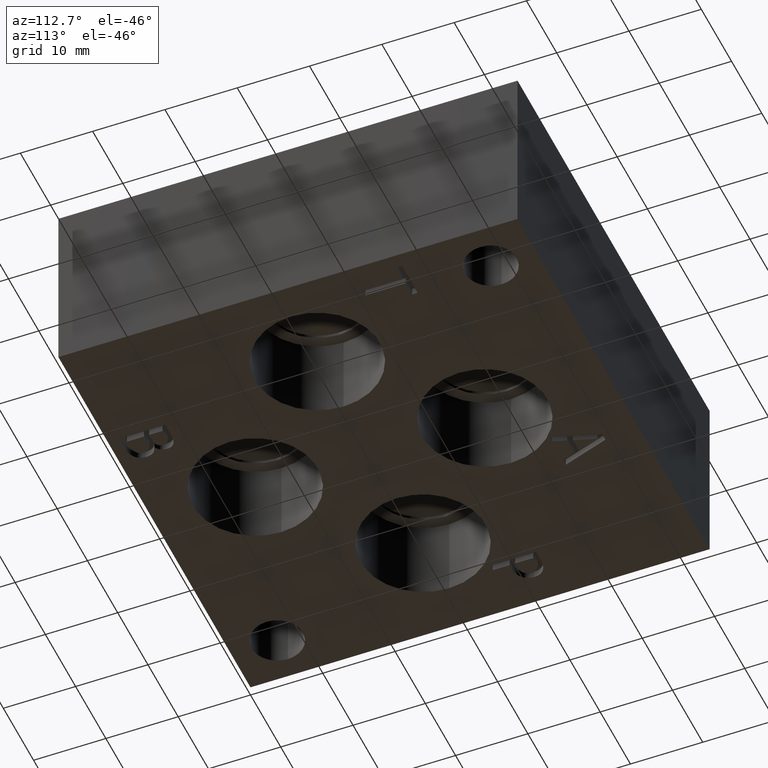
[diagram: clean part render]
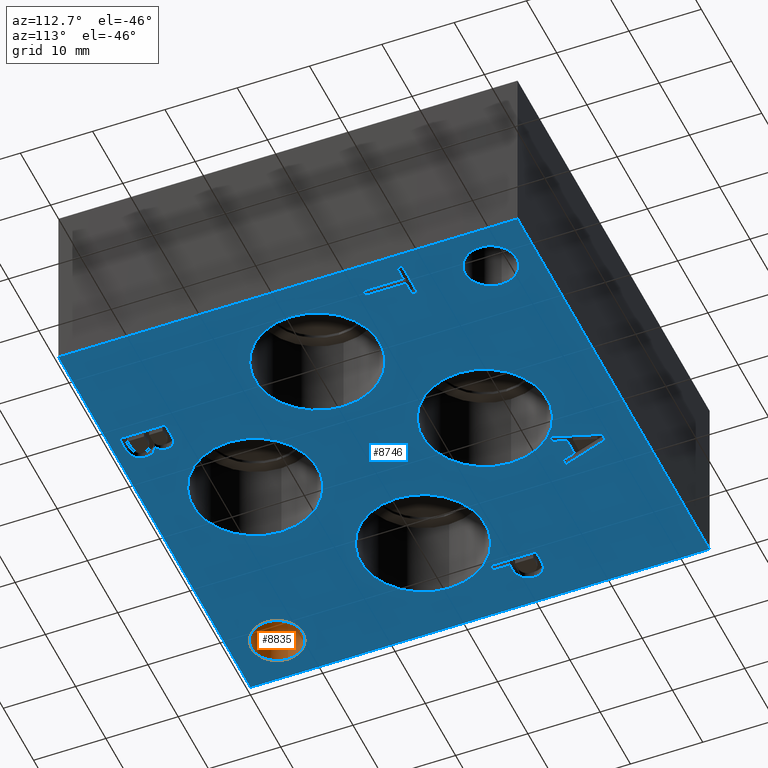
[diagram: same view with the hole feature highlighted: cylindrical wall and planar end face, labeled with their STEP entity ids]
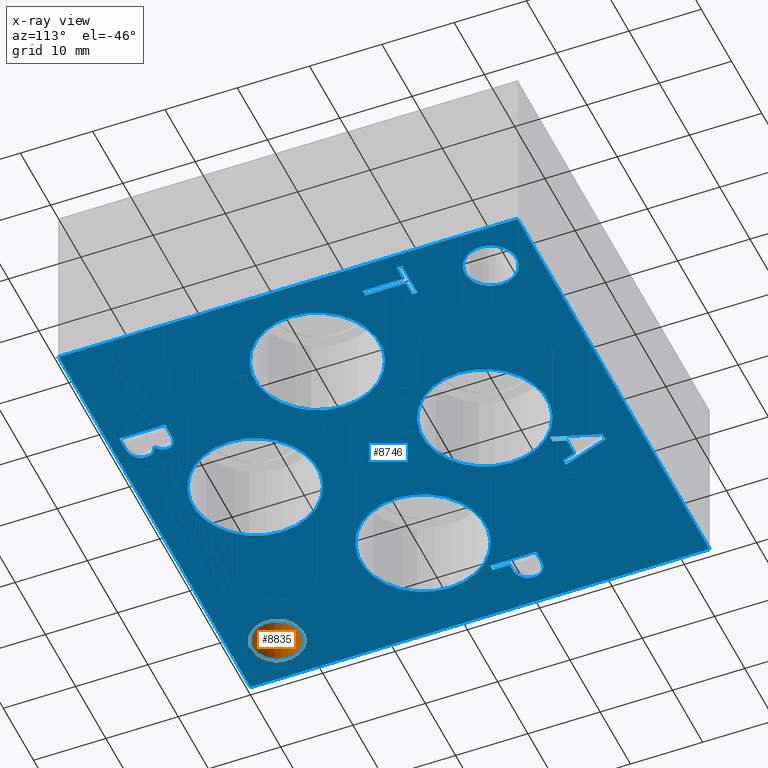
[diagram: x-ray of the same camera — body ghosted, the hole faces saturated]
A machine part, auxiliary view. The highlighted faces form one hole feature of diameter 7.1374 mm: the cylindrical wall (entity #8835, orange) and its adjacent planar end face (entity #8746, blue) — they share a circular edge in the B-rep.
The next image is the same camera in x-ray (body ghosted, the hole faces saturated) — the bore reads through the body.
Wall:
#38=CYLINDRICAL_SURFACE('',#9251,3.5687);
#61=CIRCLE('',#9092,3.5687);
#137=CIRCLE('',#9247,3.5687);
#920=FACE_OUTER_BOUND('',#1420,.T.);
#1420=EDGE_LOOP('',(#7827,#7828,#7829,#7830));
#2288=LINE('',#15134,#3144);
#3144=VECTOR('',#10902,3.5687);
#4088=VERTEX_POINT('',#14588);
#4238=VERTEX_POINT('',#15125);
#5237=EDGE_CURVE('',#4088,#4088,#61,.T.);
#5445=EDGE_CURVE('',#4238,#4238,#137,.T.);
#5449=EDGE_CURVE('',#4238,#4088,#2288,.T.);
#7827=ORIENTED_EDGE('',*,*,#5445,.T.);
#7828=ORIENTED_EDGE('',*,*,#5449,.T.);
#7829=ORIENTED_EDGE('',*,*,#5237,.F.);
#7830=ORIENTED_EDGE('',*,*,#5449,.F.);
#8835=ADVANCED_FACE('',(#920),#38,.F.);
#9092=AXIS2_PLACEMENT_3D('',#14589,#10461,#10462);
#9247=AXIS2_PLACEMENT_3D('',#15126,#10891,#10892);
#9251=AXIS2_PLACEMENT_3D('',#15133,#10900,#10901);
#10461=DIRECTION('center_axis',(0.,0.,1.));
#10462=DIRECTION('ref_axis',(1.,0.,0.));
#10891=DIRECTION('center_axis',(0.,0.,1.));
#10892=DIRECTION('ref_axis',(1.,0.,0.));
#10900=DIRECTION('center_axis',(0.,0.,1.));
#10901=DIRECTION('ref_axis',(1.,0.,0.));
#10902=DIRECTION('',(0.,0.,-1.));
#14588=CARTESIAN_POINT('',(2.7813,6.35,0.));
#14589=CARTESIAN_POINT('Origin',(6.35,6.35,0.));
#15125=CARTESIAN_POINT('',(2.7813,6.35,12.7));
#15126=CARTESIAN_POINT('Origin',(6.35,6.35,12.7));
#15133=CARTESIAN_POINT('Origin',(6.35,6.35,-67.9255592000391));
#15134=CARTESIAN_POINT('',(2.7813,6.35,-67.9255592000391));
End face:
#52=CIRCLE('',#9083,8.6487);
#53=CIRCLE('',#9084,8.6487);
#54=CIRCLE('',#9085,8.6487);
#55=CIRCLE('',#9086,8.6487);
#56=CIRCLE('',#9087,8.6487);
#57=CIRCLE('',#9088,8.6487);
#58=CIRCLE('',#9089,8.6487);
#59=CIRCLE('',#9090,8.6487);
#60=CIRCLE('',#9091,3.5687);
#61=CIRCLE('',#9092,3.5687);
#170=FACE_BOUND('',#1310,.T.);
#171=FACE_BOUND('',#1311,.T.);
#172=FACE_BOUND('',#1312,.T.);
#173=FACE_BOUND('',#1313,.T.);
#174=FACE_BOUND('',#1314,.T.);
#175=FACE_BOUND('',#1315,.T.);
#176=FACE_BOUND('',#1316,.T.);
#177=FACE_BOUND('',#1317,.T.);
#178=FACE_BOUND('',#1318,.T.);
#179=FACE_BOUND('',#1319,.T.);
#429=PLANE('',#9082);
#831=FACE_OUTER_BOUND('',#1309,.T.);
#1309=EDGE_LOOP('',(#7370,#7371,#7372,#7373));
#1310=EDGE_LOOP('',(#7374,#7375,#7376,#7377,#7378,#7379,#7380,#7381,#7382,
#7383));
#1311=EDGE_LOOP('',(#7384,#7385,#7386,#7387,#7388,#7389,#7390,#7391,#7392));
#1312=EDGE_LOOP('',(#7393,#7394));
#1313=EDGE_LOOP('',(#7395,#7396));
#1314=EDGE_LOOP('',(#7397,#7398));
#1315=EDGE_LOOP('',(#7399,#7400));
#1316=EDGE_LOOP('',(#7401));
#1317=EDGE_LOOP('',(#7402));
#1318=EDGE_LOOP('',(#7403,#7404,#7405,#7406,#7407,#7408,#7409,#7410));
#1319=EDGE_LOOP('',(#7411,#7412,#7413,#7414,#7415,#7416,#7417,#7418));
#1734=LINE('',#13293,#2590);
#2143=LINE('',#14419,#2999);
#2149=LINE('',#14482,#3005);
#2152=LINE('',#14488,#3008);
#2155=LINE('',#14494,#3011);
#2159=LINE('',#14536,#3015);
#2160=LINE('',#14538,#3016);
#2161=LINE('',#14539,#3017);
#2162=LINE('',#14557,#3018);
#2163=LINE('',#14559,#3019);
#2164=LINE('',#14561,#3020);
#2165=LINE('',#14563,#3021);
#2166=LINE('',#14565,#3022);
#2167=LINE('',#14592,#3023);
#2168=LINE('',#14594,#3024);
#2169=LINE('',#14596,#3025);
#2170=LINE('',#14598,#3026);
#2171=LINE('',#14600,#3027);
#2172=LINE('',#14602,#3028);
#2173=LINE('',#14604,#3029);
#2174=LINE('',#14605,#3030);
#2175=LINE('',#14608,#3031);
#2176=LINE('',#14610,#3032);
#2177=LINE('',#14612,#3033);
#2178=LINE('',#14614,#3034);
#2179=LINE('',#14616,#3035);
#2180=LINE('',#14618,#3036);
#2181=LINE('',#14620,#3037);
#2182=LINE('',#14621,#3038);
#2590=VECTOR('',#9704,10.);
#2999=VECTOR('',#10409,10.);
#3005=VECTOR('',#10417,10.);
#3008=VECTOR('',#10422,10.);
#3011=VECTOR('',#10427,10.);
#3015=VECTOR('',#10435,10.);
#3016=VECTOR('',#10436,10.);
#3017=VECTOR('',#10437,10.);
#3018=VECTOR('',#10438,10.);
#3019=VECTOR('',#10439,10.);
#3020=VECTOR('',#10440,10.);
#3021=VECTOR('',#10441,10.);
#3022=VECTOR('',#10442,10.);
#3023=VECTOR('',#10463,10.);
#3024=VECTOR('',#10464,10.);
#3025=VECTOR('',#10465,10.);
#3026=VECTOR('',#10466,10.);
#3027=VECTOR('',#10467,10.);
#3028=VECTOR('',#10468,10.);
#3029=VECTOR('',#10469,10.);
#3030=VECTOR('',#10470,10.);
#3031=VECTOR('',#10471,10.);
#3032=VECTOR('',#10472,10.);
#3033=VECTOR('',#10473,10.);
#3034=VECTOR('',#10474,10.);
#3035=VECTOR('',#10475,10.);
#3036=VECTOR('',#10476,10.);
#3037=VECTOR('',#10477,10.);
#3038=VECTOR('',#10478,10.);
#3390=B_SPLINE_CURVE_WITH_KNOTS('',2,(#14405,#14406,#14407,#14408),
 .UNSPECIFIED.,.F.,.F.,(3,1,3),(0.,1.,2.),.UNSPECIFIED.);
#3392=B_SPLINE_CURVE_WITH_KNOTS('',2,(#14432,#14433,#14434,#14435),
 .UNSPECIFIED.,.F.,.F.,(3,1,3),(0.,1.,2.),.UNSPECIFIED.);
#3394=B_SPLINE_CURVE_WITH_KNOTS('',2,(#14451,#14452,#14453,#14454),
 .UNSPECIFIED.,.F.,.F.,(3,1,3),(0.,1.,2.),.UNSPECIFIED.);
#3396=B_SPLINE_CURVE_WITH_KNOTS('',2,(#14470,#14471,#14472,#14473),
 .UNSPECIFIED.,.F.,.F.,(3,1,3),(0.,1.,2.),.UNSPECIFIED.);
#3398=B_SPLINE_CURVE_WITH_KNOTS('',2,(#14507,#14508,#14509,#14510),
 .UNSPECIFIED.,.F.,.F.,(3,1,3),(0.,1.,2.),.UNSPECIFIED.);
#3400=B_SPLINE_CURVE_WITH_KNOTS('',2,(#14525,#14526,#14527,#14528),
 .UNSPECIFIED.,.F.,.F.,(3,1,3),(0.,1.,2.),.UNSPECIFIED.);
#3402=B_SPLINE_CURVE_WITH_KNOTS('',2,(#14542,#14543,#14544,#14545),
 .UNSPECIFIED.,.F.,.F.,(3,1,3),(0.,1.,2.),.UNSPECIFIED.);
#3403=B_SPLINE_CURVE_WITH_KNOTS('',2,(#14547,#14548,#14549,#14550),
 .UNSPECIFIED.,.F.,.F.,(3,1,3),(0.,1.,2.),.UNSPECIFIED.);
#3404=B_SPLINE_CURVE_WITH_KNOTS('',2,(#14552,#14553,#14554,#14555),
 .UNSPECIFIED.,.F.,.F.,(3,1,3),(0.,1.,2.),.UNSPECIFIED.);
#3405=B_SPLINE_CURVE_WITH_KNOTS('',2,(#14566,#14567,#14568,#14569),
 .UNSPECIFIED.,.F.,.F.,(3,1,3),(0.,1.,2.),.UNSPECIFIED.);
#3754=VERTEX_POINT('',#13291);
#3755=VERTEX_POINT('',#13292);
#4048=VERTEX_POINT('',#14403);
#4049=VERTEX_POINT('',#14404);
#4052=VERTEX_POINT('',#14418);
#4054=VERTEX_POINT('',#14431);
#4056=VERTEX_POINT('',#14450);
#4058=VERTEX_POINT('',#14469);
#4060=VERTEX_POINT('',#14481);
#4062=VERTEX_POINT('',#14487);
#4064=VERTEX_POINT('',#14493);
#4066=VERTEX_POINT('',#14506);
#4068=VERTEX_POINT('',#14535);
#4069=VERTEX_POINT('',#14537);
#4070=VERTEX_POINT('',#14540);
#4071=VERTEX_POINT('',#14541);
#4072=VERTEX_POINT('',#14546);
#4073=VERTEX_POINT('',#14551);
#4074=VERTEX_POINT('',#14556);
#4075=VERTEX_POINT('',#14558);
#4076=VERTEX_POINT('',#14560);
#4077=VERTEX_POINT('',#14562);
#4078=VERTEX_POINT('',#14564);
#4079=VERTEX_POINT('',#14570);
#4080=VERTEX_POINT('',#14571);
#4081=VERTEX_POINT('',#14574);
#4082=VERTEX_POINT('',#14575);
#4083=VERTEX_POINT('',#14578);
#4084=VERTEX_POINT('',#14579);
#4085=VERTEX_POINT('',#14582);
#4086=VERTEX_POINT('',#14583);
#4087=VERTEX_POINT('',#14586);
#4088=VERTEX_POINT('',#14588);
#4089=VERTEX_POINT('',#14590);
#4090=VERTEX_POINT('',#14591);
#4091=VERTEX_POINT('',#14593);
#4092=VERTEX_POINT('',#14595);
#4093=VERTEX_POINT('',#14597);
#4094=VERTEX_POINT('',#14599);
#4095=VERTEX_POINT('',#14601);
#4096=VERTEX_POINT('',#14603);
#4097=VERTEX_POINT('',#14606);
#4098=VERTEX_POINT('',#14607);
#4099=VERTEX_POINT('',#14609);
#4100=VERTEX_POINT('',#14611);
#4101=VERTEX_POINT('',#14613);
#4102=VERTEX_POINT('',#14615);
#4103=VERTEX_POINT('',#14617);
#4104=VERTEX_POINT('',#14619);
#4747=EDGE_CURVE('',#3754,#3755,#1734,.T.);
#5186=EDGE_CURVE('',#4048,#4049,#3390,.T.);
#5190=EDGE_CURVE('',#4052,#4048,#2143,.T.);
#5193=EDGE_CURVE('',#4054,#4052,#3392,.T.);
#5196=EDGE_CURVE('',#4056,#4054,#3394,.T.);
#5199=EDGE_CURVE('',#4058,#4056,#3396,.T.);
#5202=EDGE_CURVE('',#4060,#4058,#2149,.T.);
#5205=EDGE_CURVE('',#4062,#4060,#2152,.T.);
#5208=EDGE_CURVE('',#4064,#4062,#2155,.T.);
#5211=EDGE_CURVE('',#4066,#4064,#3398,.T.);
#5214=EDGE_CURVE('',#4049,#4066,#3400,.T.);
#5216=EDGE_CURVE('',#4068,#3754,#2159,.T.);
#5217=EDGE_CURVE('',#4069,#4068,#2160,.T.);
#5218=EDGE_CURVE('',#3755,#4069,#2161,.T.);
#5219=EDGE_CURVE('',#4070,#4071,#3402,.T.);
#5220=EDGE_CURVE('',#4071,#4072,#3403,.T.);
#5221=EDGE_CURVE('',#4072,#4073,#3404,.T.);
#5222=EDGE_CURVE('',#4073,#4074,#2162,.T.);
#5223=EDGE_CURVE('',#4074,#4075,#2163,.T.);
#5224=EDGE_CURVE('',#4075,#4076,#2164,.T.);
#5225=EDGE_CURVE('',#4076,#4077,#2165,.T.);
#5226=EDGE_CURVE('',#4077,#4078,#2166,.T.);
#5227=EDGE_CURVE('',#4078,#4070,#3405,.T.);
#5228=EDGE_CURVE('',#4079,#4080,#52,.T.);
#5229=EDGE_CURVE('',#4080,#4079,#53,.T.);
#5230=EDGE_CURVE('',#4081,#4082,#54,.T.);
#5231=EDGE_CURVE('',#4082,#4081,#55,.T.);
#5232=EDGE_CURVE('',#4083,#4084,#56,.T.);
#5233=EDGE_CURVE('',#4084,#4083,#57,.T.);
#5234=EDGE_CURVE('',#4085,#4086,#58,.T.);
#5235=EDGE_CURVE('',#4086,#4085,#59,.T.);
#5236=EDGE_CURVE('',#4087,#4087,#60,.T.);
#5237=EDGE_CURVE('',#4088,#4088,#61,.T.);
#5238=EDGE_CURVE('',#4089,#4090,#2167,.T.);
#5239=EDGE_CURVE('',#4090,#4091,#2168,.T.);
#5240=EDGE_CURVE('',#4091,#4092,#2169,.T.);
#5241=EDGE_CURVE('',#4092,#4093,#2170,.T.);
#5242=EDGE_CURVE('',#4093,#4094,#2171,.T.);
#5243=EDGE_CURVE('',#4094,#4095,#2172,.T.);
#5244=EDGE_CURVE('',#4095,#4096,#2173,.T.);
#5245=EDGE_CURVE('',#4096,#4089,#2174,.T.);
#5246=EDGE_CURVE('',#4097,#4098,#2175,.T.);
#5247=EDGE_CURVE('',#4098,#4099,#2176,.T.);
#5248=EDGE_CURVE('',#4099,#4100,#2177,.T.);
#5249=EDGE_CURVE('',#4100,#4101,#2178,.T.);
#5250=EDGE_CURVE('',#4101,#4102,#2179,.T.);
#5251=EDGE_CURVE('',#4102,#4103,#2180,.T.);
#5252=EDGE_CURVE('',#4103,#4104,#2181,.T.);
#5253=EDGE_CURVE('',#4104,#4097,#2182,.T.);
#7370=ORIENTED_EDGE('',*,*,#4747,.F.);
#7371=ORIENTED_EDGE('',*,*,#5216,.F.);
#7372=ORIENTED_EDGE('',*,*,#5217,.F.);
#7373=ORIENTED_EDGE('',*,*,#5218,.F.);
#7374=ORIENTED_EDGE('',*,*,#5186,.T.);
#7375=ORIENTED_EDGE('',*,*,#5214,.T.);
#7376=ORIENTED_EDGE('',*,*,#5211,.T.);
#7377=ORIENTED_EDGE('',*,*,#5208,.T.);
#7378=ORIENTED_EDGE('',*,*,#5205,.T.);
#7379=ORIENTED_EDGE('',*,*,#5202,.T.);
#7380=ORIENTED_EDGE('',*,*,#5199,.T.);
#7381=ORIENTED_EDGE('',*,*,#5196,.T.);
#7382=ORIENTED_EDGE('',*,*,#5193,.T.);
#7383=ORIENTED_EDGE('',*,*,#5190,.T.);
#7384=ORIENTED_EDGE('',*,*,#5219,.T.);
#7385=ORIENTED_EDGE('',*,*,#5220,.T.);
#7386=ORIENTED_EDGE('',*,*,#5221,.T.);
#7387=ORIENTED_EDGE('',*,*,#5222,.T.);
#7388=ORIENTED_EDGE('',*,*,#5223,.T.);
#7389=ORIENTED_EDGE('',*,*,#5224,.T.);
#7390=ORIENTED_EDGE('',*,*,#5225,.T.);
#7391=ORIENTED_EDGE('',*,*,#5226,.T.);
#7392=ORIENTED_EDGE('',*,*,#5227,.T.);
#7393=ORIENTED_EDGE('',*,*,#5228,.T.);
#7394=ORIENTED_EDGE('',*,*,#5229,.T.);
#7395=ORIENTED_EDGE('',*,*,#5230,.T.);
#7396=ORIENTED_EDGE('',*,*,#5231,.T.);
#7397=ORIENTED_EDGE('',*,*,#5232,.T.);
#7398=ORIENTED_EDGE('',*,*,#5233,.T.);
#7399=ORIENTED_EDGE('',*,*,#5234,.T.);
#7400=ORIENTED_EDGE('',*,*,#5235,.T.);
#7401=ORIENTED_EDGE('',*,*,#5236,.T.);
#7402=ORIENTED_EDGE('',*,*,#5237,.T.);
#7403=ORIENTED_EDGE('',*,*,#5238,.T.);
#7404=ORIENTED_EDGE('',*,*,#5239,.T.);
#7405=ORIENTED_EDGE('',*,*,#5240,.T.);
#7406=ORIENTED_EDGE('',*,*,#5241,.T.);
#7407=ORIENTED_EDGE('',*,*,#5242,.T.);
#7408=ORIENTED_EDGE('',*,*,#5243,.T.);
#7409=ORIENTED_EDGE('',*,*,#5244,.T.);
#7410=ORIENTED_EDGE('',*,*,#5245,.T.);
#7411=ORIENTED_EDGE('',*,*,#5246,.T.);
#7412=ORIENTED_EDGE('',*,*,#5247,.T.);
#7413=ORIENTED_EDGE('',*,*,#5248,.T.);
#7414=ORIENTED_EDGE('',*,*,#5249,.T.);
#7415=ORIENTED_EDGE('',*,*,#5250,.T.);
#7416=ORIENTED_EDGE('',*,*,#5251,.T.);
#7417=ORIENTED_EDGE('',*,*,#5252,.T.);
#7418=ORIENTED_EDGE('',*,*,#5253,.T.);
#8746=ADVANCED_FACE('',(#831,#170,#171,#172,#173,#174,#175,#176,#177,#178,
#179),#429,.F.);
#9082=AXIS2_PLACEMENT_3D('',#14534,#10433,#10434);
#9083=AXIS2_PLACEMENT_3D('',#14572,#10443,#10444);
#9084=AXIS2_PLACEMENT_3D('',#14573,#10445,#10446);
#9085=AXIS2_PLACEMENT_3D('',#14576,#10447,#10448);
#9086=AXIS2_PLACEMENT_3D('',#14577,#10449,#10450);
#9087=AXIS2_PLACEMENT_3D('',#14580,#10451,#10452);
#9088=AXIS2_PLACEMENT_3D('',#14581,#10453,#10454);
#9089=AXIS2_PLACEMENT_3D('',#14584,#10455,#10456);
#9090=AXIS2_PLACEMENT_3D('',#14585,#10457,#10458);
#9091=AXIS2_PLACEMENT_3D('',#14587,#10459,#10460);
#9092=AXIS2_PLACEMENT_3D('',#14589,#10461,#10462);
#9704=DIRECTION('',(1.,0.,0.));
#10409=DIRECTION('',(0.,-1.,0.));
#10417=DIRECTION('',(-1.,0.,0.));
#10422=DIRECTION('',(-2.79741238752512E-15,1.,0.));
#10427=DIRECTION('',(1.,0.,0.));
#10433=DIRECTION('center_axis',(0.,0.,1.));
#10434=DIRECTION('ref_axis',(1.,0.,0.));
#10435=DIRECTION('',(0.,-1.,0.));
#10436=DIRECTION('',(-1.,0.,0.));
#10437=DIRECTION('',(0.,1.,0.));
#10438=DIRECTION('',(1.,6.20864547878776E-15,0.));
#10439=DIRECTION('',(3.75218139805E-15,-1.,0.));
#10440=DIRECTION('',(1.,0.,0.));
#10441=DIRECTION('',(-3.14708893596577E-15,1.,0.));
#10442=DIRECTION('',(-1.,0.,0.));
#10443=DIRECTION('center_axis',(0.,0.,1.));
#10444=DIRECTION('ref_axis',(1.,0.,0.));
#10445=DIRECTION('center_axis',(0.,0.,1.));
#10446=DIRECTION('ref_axis',(1.,0.,0.));
#10447=DIRECTION('center_axis',(0.,0.,1.));
#10448=DIRECTION('ref_axis',(1.,0.,0.));
#10449=DIRECTION('center_axis',(0.,0.,1.));
#10450=DIRECTION('ref_axis',(1.,0.,0.));
#10451=DIRECTION('center_axis',(0.,0.,1.));
#10452=DIRECTION('ref_axis',(1.,0.,0.));
#10453=DIRECTION('center_axis',(0.,0.,1.));
#10454=DIRECTION('ref_axis',(1.,0.,0.));
#10455=DIRECTION('center_axis',(0.,0.,1.));
#10456=DIRECTION('ref_axis',(1.,0.,0.));
#10457=DIRECTION('center_axis',(0.,0.,1.));
#10458=DIRECTION('ref_axis',(1.,0.,0.));
#10459=DIRECTION('center_axis',(0.,0.,1.));
#10460=DIRECTION('ref_axis',(1.,0.,0.));
#10461=DIRECTION('center_axis',(0.,0.,1.));
#10462=DIRECTION('ref_axis',(1.,0.,0.));
#10463=DIRECTION('',(1.,1.05244112384329E-14,0.));
#10464=DIRECTION('',(-3.17280044688052E-15,1.,0.));
#10465=DIRECTION('',(1.,0.,0.));
#10466=DIRECTION('',(-1.18219413911163E-14,1.,0.));
#10467=DIRECTION('',(-1.,-3.47984565141735E-15,0.));
#10468=DIRECTION('',(1.18219413911165E-14,-1.,0.));
#10469=DIRECTION('',(1.,4.16909044227779E-15,0.));
#10470=DIRECTION('',(3.17280044688052E-15,-1.,0.));
#10471=DIRECTION('',(1.,1.03976111030302E-14,0.));
#10472=DIRECTION('',(-0.319451166674571,0.94760273960677,0.));
#10473=DIRECTION('',(-1.,-8.54457150050994E-15,0.));
#10474=DIRECTION('',(-0.319451166674565,-0.947602739606772,0.));
#10475=DIRECTION('',(1.,0.,0.));
#10476=DIRECTION('',(0.308774363938379,0.951135317488763,0.));
#10477=DIRECTION('',(1.,3.6645508346136E-15,0.));
#10478=DIRECTION('',(0.308774363938383,-0.951135317488761,0.));
#13291=CARTESIAN_POINT('',(0.,0.,0.));
#13292=CARTESIAN_POINT('',(63.5,0.,0.));
#13293=CARTESIAN_POINT('',(0.,0.,0.));
#14403=CARTESIAN_POINT('',(44.0157712072233,5.10486477680545,0.));
#14404=CARTESIAN_POINT('',(42.8270759252378,3.52508360117969,0.));
#14405=CARTESIAN_POINT('Ctrl Pts',(44.0157712072233,5.10486477680545,0.));
#14406=CARTESIAN_POINT('Ctrl Pts',(43.4497258348493,4.95048876615798,0.));
#14407=CARTESIAN_POINT('Ctrl Pts',(42.8270759252378,4.13229590972639,0.));
#14408=CARTESIAN_POINT('Ctrl Pts',(42.8270759252378,3.52508360117969,0.));
#14418=CARTESIAN_POINT('',(44.0157712072233,5.13573997893494,0.));
#14419=CARTESIAN_POINT('',(44.0157712072233,18.4428699894675,0.));
#14431=CARTESIAN_POINT('',(43.1255362124896,6.49424887263267,0.));
#14432=CARTESIAN_POINT('Ctrl Pts',(43.1255362124896,6.49424887263267,0.));
#14433=CARTESIAN_POINT('Ctrl Pts',(43.1255362124896,6.04655844175501,0.));
#14434=CARTESIAN_POINT('Ctrl Pts',(43.5989559784752,5.33642879277665,0.));
#14435=CARTESIAN_POINT('Ctrl Pts',(44.0157712072233,5.13573997893494,0.));
#14450=CARTESIAN_POINT('',(43.7842071912521,7.66750655355344,0.));
#14451=CARTESIAN_POINT('Ctrl Pts',(43.7842071912521,7.66750655355344,0.));
#14452=CARTESIAN_POINT('Ctrl Pts',(43.4394341008061,7.48740120779806,0.));
#14453=CARTESIAN_POINT('Ctrl Pts',(43.1255362124896,6.89562650031609,0.));
#14454=CARTESIAN_POINT('Ctrl Pts',(43.1255362124896,6.49424887263267,0.));
#14469=CARTESIAN_POINT('',(45.4514681062448,7.92479990463256,0.));
#14470=CARTESIAN_POINT('Ctrl Pts',(45.4514681062448,7.92479990463256,0.));
#14471=CARTESIAN_POINT('Ctrl Pts',(44.7722136593959,7.92479990463256,0.));
#14472=CARTESIAN_POINT('Ctrl Pts',(44.092959212547,7.83732016526566,0.));
#14473=CARTESIAN_POINT('Ctrl Pts',(43.7842071912521,7.66750655355344,0.));
#14481=CARTESIAN_POINT('',(47.1341666223022,7.92479990463256,0.));
#14482=CARTESIAN_POINT('',(39.4420833111511,7.92479990463256,0.));
#14487=CARTESIAN_POINT('',(47.1341666223022,1.5748,0.));
#14488=CARTESIAN_POINT('',(47.1341666223022,16.6624,0.));
#14493=CARTESIAN_POINT('',(45.3125296966621,1.5748,0.));
#14494=CARTESIAN_POINT('',(38.531264848331,1.5748,0.));
#14506=CARTESIAN_POINT('',(43.4857469040004,2.08938670215822,0.));
#14507=CARTESIAN_POINT('Ctrl Pts',(43.4857469040004,2.08938670215822,0.));
#14508=CARTESIAN_POINT('Ctrl Pts',(43.8459575955111,1.81150988299278,0.));
#14509=CARTESIAN_POINT('Ctrl Pts',(44.6641504519427,1.57479999999999,0.));
#14510=CARTESIAN_POINT('Ctrl Pts',(45.3125296966621,1.5748,0.));
#14525=CARTESIAN_POINT('Ctrl Pts',(42.8270759252378,3.52508360117969,0.));
#14526=CARTESIAN_POINT('Ctrl Pts',(42.8270759252378,3.05166383519411,0.));
#14527=CARTESIAN_POINT('Ctrl Pts',(43.1872866167486,2.326096585151,0.));
#14528=CARTESIAN_POINT('Ctrl Pts',(43.4857469040004,2.08938670215822,0.));
#14534=CARTESIAN_POINT('Origin',(31.75,31.75,0.));
#14535=CARTESIAN_POINT('',(0.,63.5,0.));
#14536=CARTESIAN_POINT('',(0.,63.5,0.));
#14537=CARTESIAN_POINT('',(63.5,63.5,0.));
#14538=CARTESIAN_POINT('',(63.5,63.5,0.));
#14539=CARTESIAN_POINT('',(63.5,0.,0.));
#14540=CARTESIAN_POINT('',(4.83703279764059,42.4789681439707,0.));
#14541=CARTESIAN_POINT('',(4.080590345468,40.9609373726039,0.));
#14542=CARTESIAN_POINT('Ctrl Pts',(4.83703279764059,42.4789681439707,0.));
#14543=CARTESIAN_POINT('Ctrl Pts',(4.48196797315141,42.2371123939564,0.));
#14544=CARTESIAN_POINT('Ctrl Pts',(4.080590345468,41.4909616758269,0.));
#14545=CARTESIAN_POINT('Ctrl Pts',(4.080590345468,40.9609373726039,0.));
#14546=CARTESIAN_POINT('',(4.63634398379889,39.5509698086904,0.));
#14547=CARTESIAN_POINT('Ctrl Pts',(4.080590345468,40.9609373726039,0.));
#14548=CARTESIAN_POINT('Ctrl Pts',(4.080590345468,40.5492680108773,0.));
#14549=CARTESIAN_POINT('Ctrl Pts',(4.37390476569819,39.8082631597695,0.));
#14550=CARTESIAN_POINT('Ctrl Pts',(4.63634398379889,39.5509698086904,0.));
#14551=CARTESIAN_POINT('',(6.53516891476276,38.8922988299279,0.));
#14552=CARTESIAN_POINT('Ctrl Pts',(4.63634398379889,39.5509698086904,0.));
#14553=CARTESIAN_POINT('Ctrl Pts',(4.96567947318016,39.2267801863307,0.));
#14554=CARTESIAN_POINT('Ctrl Pts',(5.8559144679139,38.8922988299279,0.));
#14555=CARTESIAN_POINT('Ctrl Pts',(6.53516891476276,38.8922988299279,0.));
#14556=CARTESIAN_POINT('',(7.25044443076271,38.8922988299279,0.));
#14557=CARTESIAN_POINT('',(19.1425844573814,38.8922988299279,0.));
#14558=CARTESIAN_POINT('',(7.25044443076271,36.5252,0.));
#14559=CARTESIAN_POINT('',(7.25044443076272,35.3211494149639,0.));
#14560=CARTESIAN_POINT('',(8.09436662230221,36.5252,0.));
#14561=CARTESIAN_POINT('',(19.5002222153814,36.5252,0.));
#14562=CARTESIAN_POINT('',(8.09436662230219,42.8751999046326,0.));
#14563=CARTESIAN_POINT('',(8.09436662230222,34.1376,0.));
#14564=CARTESIAN_POINT('',(6.49914784561168,42.8751999046326,0.));
#14565=CARTESIAN_POINT('',(19.9221833111511,42.8751999046326,0.));
#14566=CARTESIAN_POINT('Ctrl Pts',(6.49914784561168,42.8751999046326,0.));
#14567=CARTESIAN_POINT('Ctrl Pts',(5.93310247323762,42.8751999046326,0.));
#14568=CARTESIAN_POINT('Ctrl Pts',(5.14063895191395,42.6899486918556,0.));
#14569=CARTESIAN_POINT('Ctrl Pts',(4.83703279764059,42.4789681439707,0.));
#14570=CARTESIAN_POINT('',(41.1861,46.0248,0.));
#14571=CARTESIAN_POINT('',(23.8887,46.0248,0.));
#14572=CARTESIAN_POINT('Origin',(32.5374,46.0248,0.));
#14573=CARTESIAN_POINT('Origin',(32.5374,46.0248,0.));
#14574=CARTESIAN_POINT('',(23.7363,30.1752,0.));
#14575=CARTESIAN_POINT('',(6.4389,30.1752,0.));
#14576=CARTESIAN_POINT('Origin',(15.0876,30.1752,0.));
#14577=CARTESIAN_POINT('Origin',(15.0876,30.1752,0.));
#14578=CARTESIAN_POINT('',(58.6613,30.1752,0.));
#14579=CARTESIAN_POINT('',(41.3639,30.1752,0.));
#14580=CARTESIAN_POINT('Origin',(50.0126,30.1752,0.));
#14581=CARTESIAN_POINT('Origin',(50.0126,30.1752,0.));
#14582=CARTESIAN_POINT('',(41.1861,14.2748,0.));
#14583=CARTESIAN_POINT('',(23.8887,14.2748,0.));
#14584=CARTESIAN_POINT('Origin',(32.5374,14.2748,0.));
#14585=CARTESIAN_POINT('Origin',(32.5374,14.2748,0.));
#14586=CARTESIAN_POINT('',(53.5813,57.15,0.));
#14587=CARTESIAN_POINT('Origin',(57.15,57.15,0.));
#14588=CARTESIAN_POINT('',(2.7813,6.35,0.));
#14589=CARTESIAN_POINT('Origin',(6.35,6.35,0.));
#14590=CARTESIAN_POINT('',(58.473434728547,40.3352,0.));
#14591=CARTESIAN_POINT('',(59.3173569200865,40.3352,0.));
#14592=CARTESIAN_POINT('',(45.1117173642735,40.3351999999999,0.));
#14593=CARTESIAN_POINT('',(59.3173569200865,45.9339033194816,0.));
#14594=CARTESIAN_POINT('',(59.3173569200865,36.0426,0.));
#14595=CARTESIAN_POINT('',(61.4477458670216,45.9339033194816,0.));
#14596=CARTESIAN_POINT('',(45.5336784600433,45.9339033194816,0.));
#14597=CARTESIAN_POINT('',(61.4477458670216,46.6851999046326,0.));
#14598=CARTESIAN_POINT('',(61.4477458670217,38.841951659741,0.));
#14599=CARTESIAN_POINT('',(56.3430457816119,46.6851999046326,0.));
#14600=CARTESIAN_POINT('',(46.5988729335108,46.6851999046325,0.));
#14601=CARTESIAN_POINT('',(56.3430457816119,45.9339033194815,0.));
#14602=CARTESIAN_POINT('',(56.343045781612,39.2175999523164,0.));
#14603=CARTESIAN_POINT('',(58.473434728547,45.9339033194816,0.));
#14604=CARTESIAN_POINT('',(44.0465228908059,45.9339033194815,0.));
#14605=CARTESIAN_POINT('',(58.473434728547,38.8419516597408,0.));
#14606=CARTESIAN_POINT('',(25.37435301059,52.3748,0.));
#14607=CARTESIAN_POINT('',(26.2285669361727,52.3748,0.));
#14608=CARTESIAN_POINT('',(28.5621765052949,52.3748,0.));
#14609=CARTESIAN_POINT('',(24.0878862551944,58.7247999046326,0.));
#14610=CARTESIAN_POINT('',(29.6319909158042,42.2790663681124,0.));
#14611=CARTESIAN_POINT('',(23.0484211168348,58.7247999046326,0.));
#14612=CARTESIAN_POINT('',(27.9189431275971,58.7247999046326,0.));
#14613=CARTESIAN_POINT('',(20.9077404358566,52.3748,0.));
#14614=CARTESIAN_POINT('',(19.4096064230366,47.9308159331253,0.));
#14615=CARTESIAN_POINT('',(21.7979754305903,52.3748,0.));
#14616=CARTESIAN_POINT('',(26.3288702179283,52.3748,0.));
#14617=CARTESIAN_POINT('',(22.3743125370075,54.1501241224459,0.));
#14618=CARTESIAN_POINT('',(19.2437868458883,44.5069869489089,0.));
#14619=CARTESIAN_POINT('',(24.7980159041728,54.1501241224459,0.));
#14620=CARTESIAN_POINT('',(27.0621562685037,54.1501241224459,0.));
#14621=CARTESIAN_POINT('',(28.4187262713161,42.997043080799,0.));